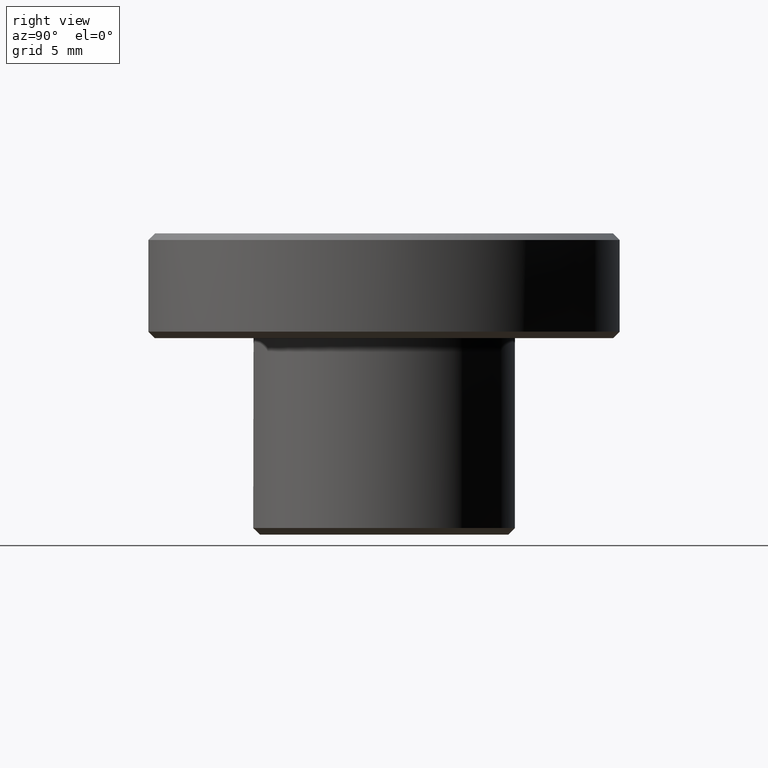
[diagram: clean part render]
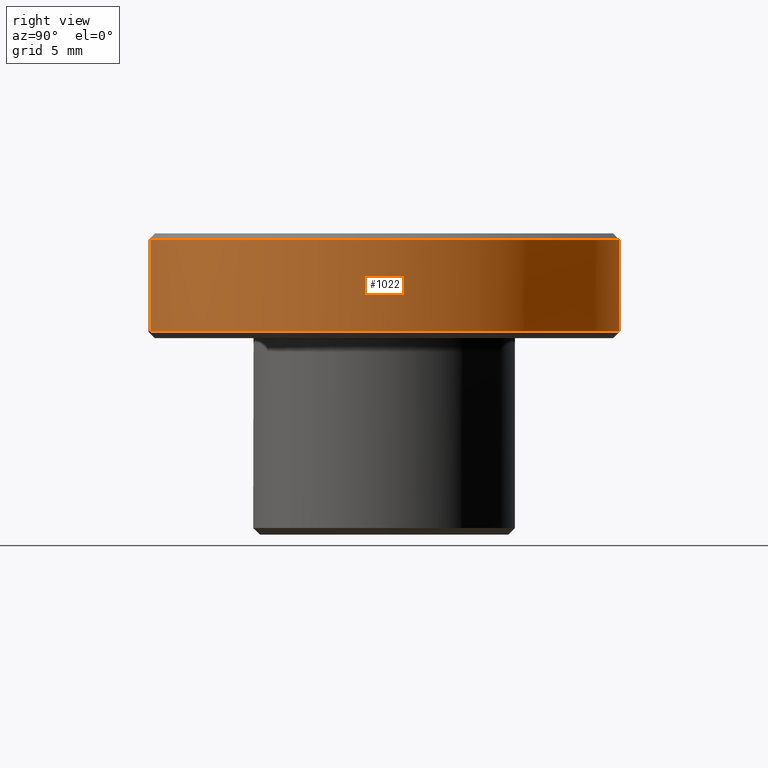
[diagram: same view with one face highlighted and labeled with its STEP entity id]
A machine part, right view. The second image highlights one B-rep face of the part: STEP entity #1022.
In plain terms, the highlighted face is a freeform B-spline surface patch.
Its self-contained STEP definition (entity closure, byte-faithful):
#118=CARTESIAN_POINT('',(0.157077639026141,17.999314615162131,22.499999999992468));
#119=VERTEX_POINT('',#118);
#125=CARTESIAN_POINT('',(-0.157065289093424,17.999314722922350,22.500000000000039));
#126=VERTEX_POINT('',#125);
#127=CARTESIAN_POINT('',(-0.157065289093424,17.999314722922346,22.500000000000036));
#128=CARTESIAN_POINT('',(-0.078534139481322,18.0,22.499999999999996));
#129=CARTESIAN_POINT('',(0.0,18.0,22.500000000000000));
#130=CARTESIAN_POINT('',(0.078540314827987,18.0,22.500000000000000));
#131=CARTESIAN_POINT('',(0.157077639026141,17.999314615162131,22.499999999992461));
#139=(BOUNDED_CURVE()B_SPLINE_CURVE(2,(#127,#128,#129,#130,#131),.UNSPECIFIED.,.F.,.U.)B_SPLINE_CURVE_WITH_KNOTS((3,2,3),(0.248460226521948,0.250000000000000,0.251539894336071),.UNSPECIFIED.)CURVE()GEOMETRIC_REPRESENTATION_ITEM()RATIONAL_B_SPLINE_CURVE((0.996414307797352,0.998196043159079,1.0,0.998195901565103,0.996414028097898))REPRESENTATION_ITEM(''));
#140=EDGE_CURVE('',#126,#119,#139,.T.);
#180=CARTESIAN_POINT('',(2.234296449453625,-17.860792798078709,22.500000000000060));
#181=VERTEX_POINT('',#180);
#197=CARTESIAN_POINT('',(18.0,0.0,22.500000000000000));
#198=VERTEX_POINT('',#197);
#199=CARTESIAN_POINT('',(18.0,0.0,22.500000000000000));
#200=CARTESIAN_POINT('',(18.0,-15.888581605421901,22.499999999999996));
#201=CARTESIAN_POINT('',(2.234296449453625,-17.860792798078712,22.500000000000060));
#209=(BOUNDED_CURVE()B_SPLINE_CURVE(2,(#199,#200,#201),.UNSPECIFIED.,.F.,.U.)B_SPLINE_CURVE_WITH_KNOTS((3,3),(0.500000000000000,0.728526142676878),.UNSPECIFIED.)CURVE()GEOMETRIC_REPRESENTATION_ITEM()RATIONAL_B_SPLINE_CURVE((1.0,0.732264969953387,0.954005569315019))REPRESENTATION_ITEM(''));
#210=EDGE_CURVE('',#198,#181,#209,.T.);
#212=CARTESIAN_POINT('',(0.157077639026141,17.999314615162135,22.499999999992465));
#213=CARTESIAN_POINT('',(18.0,17.843601790599877,22.500000000000000));
#214=CARTESIAN_POINT('',(18.0,0.0,22.500000000000000));
#222=(BOUNDED_CURVE()B_SPLINE_CURVE(2,(#212,#213,#214),.UNSPECIFIED.,.F.,.U.)B_SPLINE_CURVE_WITH_KNOTS((3,3),(0.251539894336070,0.500000000000000),.UNSPECIFIED.)CURVE()GEOMETRIC_REPRESENTATION_ITEM()RATIONAL_B_SPLINE_CURVE((0.996414028097899,0.708910879621444,1.0))REPRESENTATION_ITEM(''));
#223=EDGE_CURVE('',#119,#198,#222,.T.);
#361=CARTESIAN_POINT('',(-0.157064489507511,17.999314729899101,15.500000000000000));
#362=VERTEX_POINT('',#361);
#376=CARTESIAN_POINT('',(18.0,0.0,15.500000000000000));
#377=VERTEX_POINT('',#376);
#378=CARTESIAN_POINT('',(18.0,0.0,15.500000000000000));
#379=CARTESIAN_POINT('',(18.000000000000007,18.000000000000007,15.500000000000005));
#380=CARTESIAN_POINT('',(0.0,18.0,15.500000000000000));
#381=CARTESIAN_POINT('',(-0.078533739665535,17.999999999999996,15.499999999999998));
#382=CARTESIAN_POINT('',(-0.157064489507511,17.999314729899098,15.500000000000004));
#390=(BOUNDED_CURVE()B_SPLINE_CURVE(2,(#378,#379,#380,#381,#382),.UNSPECIFIED.,.F.,.U.)B_SPLINE_CURVE_WITH_KNOTS((3,2,3),(0.500000000000000,0.750000000000000,0.751539765653236),.UNSPECIFIED.)CURVE()GEOMETRIC_REPRESENTATION_ITEM()RATIONAL_B_SPLINE_CURVE((1.0,0.707106781186547,1.0,0.998196052326421,0.996414325906187))REPRESENTATION_ITEM(''));
#391=EDGE_CURVE('',#377,#362,#390,.T.);
#393=CARTESIAN_POINT('',(14.739590028790010,-10.331722304785830,15.500000000000380));
#394=VERTEX_POINT('',#393);
#395=CARTESIAN_POINT('',(14.739590028790001,-10.331722304785833,15.500000000000380));
#396=CARTESIAN_POINT('',(17.999999999999993,-5.680309415077398,15.500000000000000));
#397=CARTESIAN_POINT('',(18.0,0.0,15.500000000000000));
#405=(BOUNDED_CURVE()B_SPLINE_CURVE(2,(#395,#396,#397),.UNSPECIFIED.,.F.,.U.)B_SPLINE_CURVE_WITH_KNOTS((3,3),(0.401326273796971,0.500000000000000),.UNSPECIFIED.)CURVE()GEOMETRIC_REPRESENTATION_ITEM()RATIONAL_B_SPLINE_CURVE((0.860049271925794,0.884396538880310,1.0))REPRESENTATION_ITEM(''));
#406=EDGE_CURVE('',#394,#377,#405,.T.);
#444=CARTESIAN_POINT('',(2.234292979299845,-17.860793232175531,15.500000000000000));
#445=VERTEX_POINT('',#444);
#446=CARTESIAN_POINT('',(2.234292979299845,-17.860793232175535,15.500000000000007));
#447=CARTESIAN_POINT('',(10.156768879505131,-16.869732418003473,15.500000000000002));
#448=CARTESIAN_POINT('',(14.739590028790010,-10.331722304785831,15.500000000000387));
#456=(BOUNDED_CURVE()B_SPLINE_CURVE(2,(#446,#447,#448),.UNSPECIFIED.,.F.,.U.)B_SPLINE_CURVE_WITH_KNOTS((3,3),(0.271473824557087,0.401326273796971),.UNSPECIFIED.)CURVE()GEOMETRIC_REPRESENTATION_ITEM()RATIONAL_B_SPLINE_CURVE((0.954005632901279,0.828008805147070,0.860049271925795))REPRESENTATION_ITEM(''));
#457=EDGE_CURVE('',#445,#394,#456,.T.);
#986=CARTESIAN_POINT('',(2.234304037436927,-17.860791848859694,15.324999999999998));
#987=CARTESIAN_POINT('',(18.139190949044000,-15.871162646397979,15.324999999999994));
#988=CARTESIAN_POINT('',(17.999314615155079,0.157077638970730,15.324999999999999));
#989=CARTESIAN_POINT('',(17.842236976184342,18.156392254125802,15.324999999999998));
#990=CARTESIAN_POINT('',(-0.157077638970730,17.999314615155079,15.324999999999999));
#991=CARTESIAN_POINT('',(2.234304037436927,-17.860791848859694,22.679375000000004));
#992=CARTESIAN_POINT('',(18.139190949044000,-15.871162646397979,22.679375000000007));
#993=CARTESIAN_POINT('',(17.999314615155079,0.157077638970730,22.679375000000000));
#994=CARTESIAN_POINT('',(17.842236976184342,18.156392254125802,22.679375000000000));
#995=CARTESIAN_POINT('',(-0.157077638970730,17.999314615155079,22.679375000000000));
#1003=(BOUNDED_SURFACE()B_SPLINE_SURFACE(2,1,((#986,#991),(#987,#992),(#988,#993),(#989,#994),(#990,#995)),.UNSPECIFIED.,.F.,.F.,.U.)B_SPLINE_SURFACE_WITH_KNOTS((3,2,3),(2,2),(0.0,27.437506371593798,57.260882862456640),(0.0,7.354375000000009),.UNSPECIFIED.)GEOMETRIC_REPRESENTATION_ITEM()RATIONAL_B_SPLINE_SURFACE(((0.956886118190660,0.956886118190660),(0.730538238691624,0.730538238691624),(1.0,1.0),(0.707106781186548,0.707106781186548),(1.0,1.0)))REPRESENTATION_ITEM('')SURFACE());
#1004=ORIENTED_EDGE('',*,*,#210,.T.);
#1005=CARTESIAN_POINT('',(2.234292979299845,-17.860793232175531,15.500000000000000));
#1006=CARTESIAN_POINT('',(2.234296449453625,-17.860792798078709,22.500000000000060));
#1007=QUASI_UNIFORM_CURVE('',1,(#1005,#1006),.UNSPECIFIED.,.F.,.U.);
#1008=EDGE_CURVE('',#445,#181,#1007,.T.);
#1009=ORIENTED_EDGE('',*,*,#1008,.F.);
#1010=ORIENTED_EDGE('',*,*,#457,.T.);
#1011=ORIENTED_EDGE('',*,*,#406,.T.);
#1012=ORIENTED_EDGE('',*,*,#391,.T.);
#1013=CARTESIAN_POINT('',(-0.157064489507511,17.999314729899101,15.500000000000000));
#1014=CARTESIAN_POINT('',(-0.157065289093424,17.999314722922350,22.500000000000039));
#1015=QUASI_UNIFORM_CURVE('',1,(#1013,#1014),.UNSPECIFIED.,.F.,.U.);
#1016=EDGE_CURVE('',#362,#126,#1015,.T.);
#1017=ORIENTED_EDGE('',*,*,#1016,.T.);
#1018=ORIENTED_EDGE('',*,*,#140,.T.);
#1019=ORIENTED_EDGE('',*,*,#223,.T.);
#1020=EDGE_LOOP('',(#1004,#1009,#1010,#1011,#1012,#1017,#1018,#1019));
#1021=FACE_OUTER_BOUND('',#1020,.T.);
#1022=ADVANCED_FACE('',(#1021),#1003,.T.);